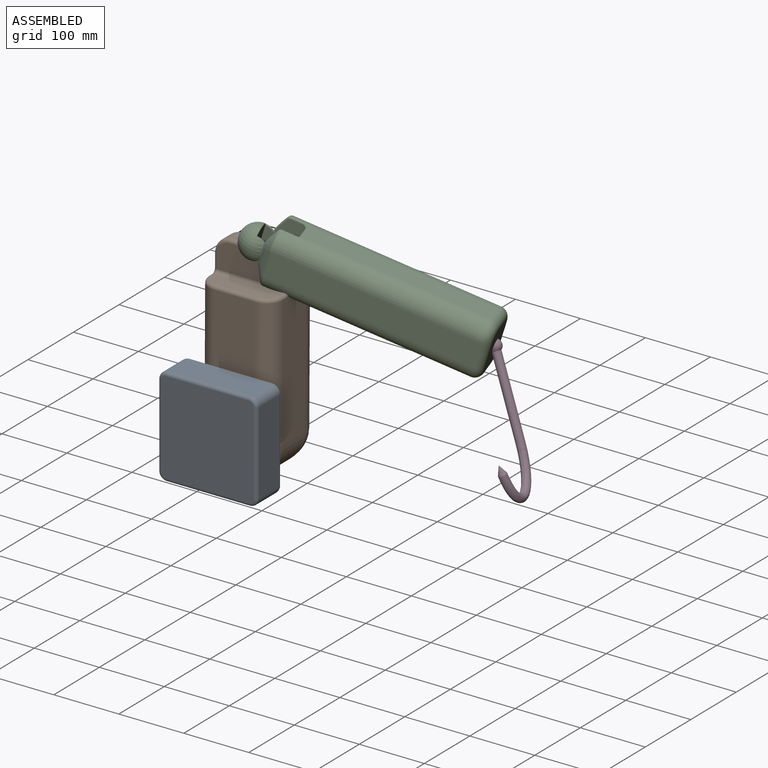
[diagram: assembled view]
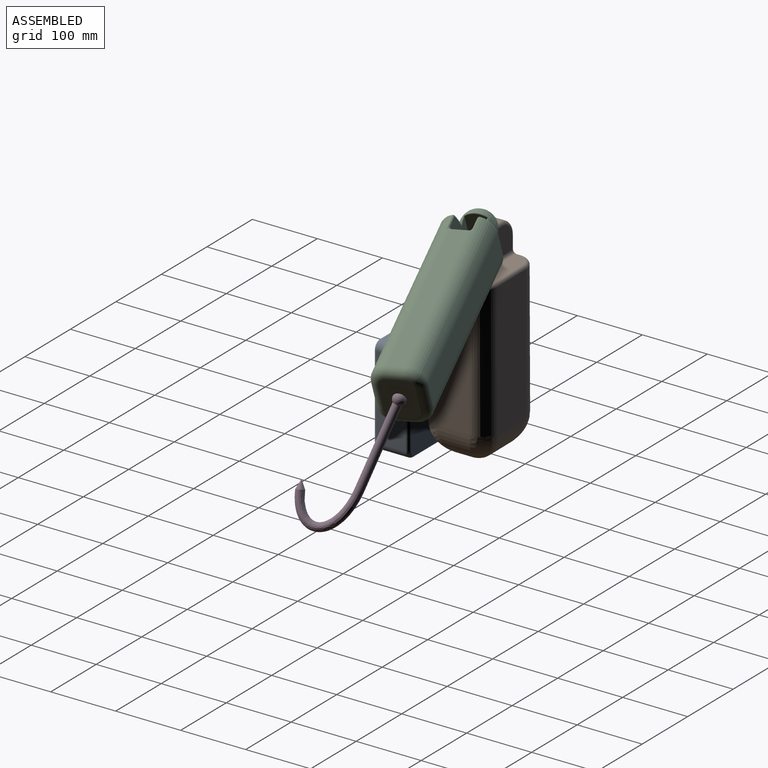
[diagram: assembled view, second angle]
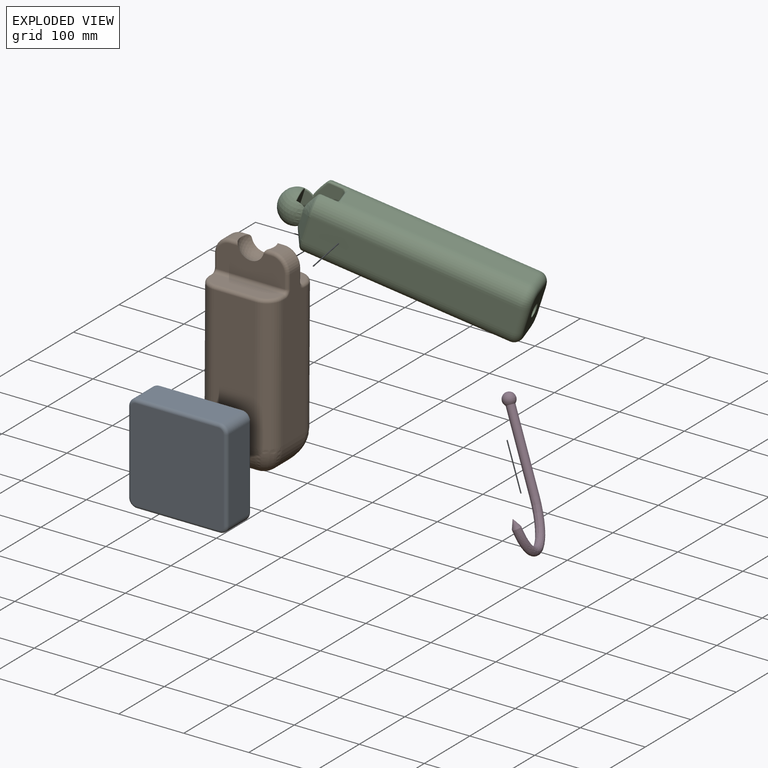
[diagram: exploded view]
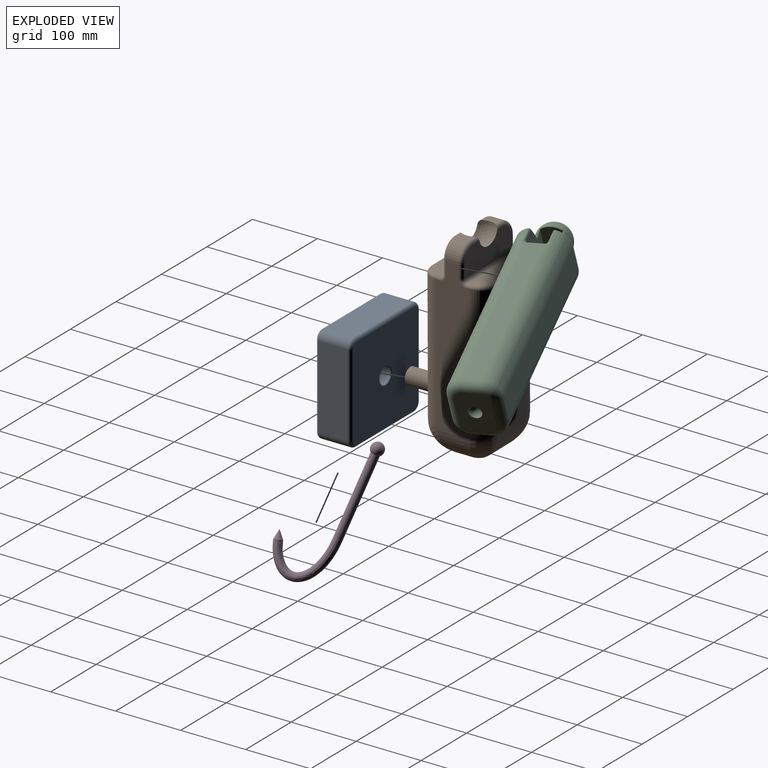
[diagram: exploded view, second angle]
ASSEMBLY  parts=4 mates=3
PART A: 29 faces, bbox 154.5x54.6x154.5 mm
  f0: plane 127x44.45mm, normal (0,0,-1), area 5645.2mm2, adj f1,f7,f12,f20
  f1: cylinder r=12.7mm len=44.45mm, axis (0,1,0), area 886.7mm2, adj f0,f2,f13,f21
  f2: plane 127x44.45mm, normal (1,0,0), area 5645.2mm2, adj f1,f3,f15,f23
  f3: cylinder r=12.7mm len=44.45mm, axis (0,1,0), area 886.7mm2, adj f2,f4,f17,f25
  f4: plane 127x44.45mm, normal (0,0,1), area 5645.2mm2, adj f3,f5,f19,f27
  f5: cylinder r=12.7mm len=44.45mm, axis (0,1,0), area 886.7mm2, adj f4,f6,f18,f26
  f6: plane 127x44.45mm, normal (-1,0,0), area 5645.2mm2, adj f5,f7,f16,f24
  f7: cylinder r=12.7mm len=44.45mm, axis (0,1,0), area 886.7mm2, adj f0,f6,f14,f22
  f8: plane 142.24x142.24mm, normal (0,-1,0), area 20182.4mm2, adj f20,f21,f22,f23,f24,f25,f26,f27
  f9: plane 142.24x142.24mm, normal (0,1,0), area 19569.3mm2, adj f12,f13,f14,f15,f16,f17,f18,f19
  f10: cylinder r=12.7mm len=49.53mm, axis (0,1,0), area 3952.3mm2, adj f11,f28
  f11: plane 25.4x25.4mm, normal (0,1,0), area 506.7mm2, adj f10
  f12: cylinder r=5.08mm len=127mm, axis (1,0,0), area 1013.4mm2, adj f0,f9,f13,f14
  f13: torus R=7.62mm, axis (0,-1,0), area 136mm2, adj f1,f9,f12,f15
  f14: torus R=7.62mm, axis (0,-1,0), area 136mm2, adj f7,f9,f12,f16
  f15: cylinder r=5.08mm len=127mm, axis (0,0,1), area 1013.4mm2, adj f2,f9,f13,f17
  f16: cylinder r=5.08mm len=127mm, axis (0,0,-1), area 1013.4mm2, adj f6,f9,f14,f18
  f17: torus R=7.62mm, axis (0,-1,0), area 136mm2, adj f3,f9,f15,f19
  f18: torus R=7.62mm, axis (0,-1,0), area 136mm2, adj f5,f9,f16,f19
  f19: cylinder r=5.08mm len=127mm, axis (-1,0,0), area 1013.4mm2, adj f4,f9,f17,f18
  f20: cylinder r=5.08mm len=127mm, axis (-1,0,0), area 1013.4mm2, adj f0,f8,f21,f22
  f21: torus R=7.62mm, axis (0,-1,0), area 136mm2, adj f1,f8,f20,f23
  f22: torus R=7.62mm, axis (0,-1,0), area 136mm2, adj f7,f8,f20,f24
  f23: cylinder r=5.08mm len=127mm, axis (0,0,-1), area 1013.4mm2, adj f2,f8,f21,f25
  f24: cylinder r=5.08mm len=127mm, axis (0,0,1), area 1013.4mm2, adj f6,f8,f22,f26
  f25: torus R=7.62mm, axis (0,-1,0), area 136mm2, adj f3,f8,f23,f27
  f26: torus R=7.62mm, axis (0,-1,0), area 136mm2, adj f5,f8,f24,f27
  f27: cylinder r=5.08mm len=127mm, axis (1,0,0), area 1013.4mm2, adj f4,f8,f25,f26
  f28: torus R=13.97mm, axis (0,-1,0), area 165mm2, adj f9,f10
PART B: 54 faces, bbox 118.5x312x158.3 mm
  f0: plane 20.32x8.47mm, normal (0,-1,0), area 143.1mm2, adj f11,f12,f40,f53
  f1: plane 203.2x63.5mm, normal (0,0,-1), area 12903.2mm2, adj f2,f8,f18,f47
  f2: cylinder r=25.4mm len=203.2mm, axis (0,1,0), area 8107.3mm2, adj f1,f3,f17,f48
  f3: plane 233.68x50.8mm, normal (1,0,0), area 10986.2mm2, adj f2,f4,f11,f13,f36,f37,f38,f49
  f4: cylinder r=25.4mm len=203.2mm, axis (0,1,0), area 8107.3mm2, adj f3,f5,f14,f35
  f5: plane 203.2x63.5mm, normal (0,0,1), area 12396.5mm2, adj f4,f6,f18,f26,f34
  f6: cylinder r=25.4mm len=203.2mm, axis (0,1,0), area 8107.3mm2, adj f5,f7,f15,f33
  f7: plane 233.68x50.8mm, normal (-1,0,0), area 10986.2mm2, adj f6,f8,f10,f16,f30,f31,f32,f43
  f8: cylinder r=25.4mm len=203.2mm, axis (0,1,0), area 8107.3mm2, adj f1,f7,f19,f46
  f9: plane 20.32x8.47mm, normal (0,-1,0), area 143.1mm2, adj f10,f12,f28,f41
  f10: cylinder r=25.4mm len=25.4mm, axis (0,0,1), area 810.7mm2, adj f7,f9,f29,f42
  f11: cylinder r=25.4mm len=25.4mm, axis (0,0,-1), area 810.7mm2, adj f0,f3,f39,f52
  f12: sphere r=25.4mm, area 2405.4mm2, adj f0,f9,f20,f22,f28,f40,f41,f53
  f13: cylinder r=50.8mm len=50.8mm, axis (0,0,1), area 2580.6mm2, adj f3,f14,f17
  f14: bspline ~60.66x50.8mm, area 2129.2mm2, adj f4,f13,f18
  f15: bspline ~60.66x50.8mm, area 2129.2mm2, adj f6,f16,f18
  f16: cylinder r=50.8mm len=50.8mm, axis (0,0,-1), area 2580.6mm2, adj f7,f15,f19
  f17: bspline ~60.66x50.8mm, area 2129.2mm2, adj f2,f13,f18
  f18: cylinder r=50.8mm len=101.6mm, axis (-1,0,0), area 7188.1mm2, adj f1,f5,f14,f15,f17,f19
  f19: bspline ~60.66x50.8mm, area 2129.2mm2, adj f8,f16,f18
  f20: plane 104.14x40.64mm, normal (0,0,-1), area 3610.7mm2, adj f12,f24,f41,f42,f43,f51,f52,f53
  f21: plane 104.14x25.4mm, normal (0,-1,0), area 2467.9mm2, adj f24,f45,f46,f47,f48,f49
  f22: plane 104.14x40.64mm, normal (0,0,1), area 3610.7mm2, adj f12,f25,f28,f29,f30,f38,f39,f40
  f23: plane 104.14x25.4mm, normal (0,-1,0), area 2467.9mm2, adj f25,f32,f33,f34,f35,f36
  f24: cylinder r=5.08mm len=104.14mm, axis (-1,0,0), area 831mm2, adj f20,f21,f44,f50
  f25: cylinder r=5.08mm len=104.14mm, axis (1,0,0), area 831mm2, adj f22,f23,f31,f37
  f26: cylinder r=12.7mm len=54.61mm, axis (0,0,-1), area 4357.7mm2, adj f5,f27
  f27: plane 25.4x25.4mm, normal (0,0,1), area 506.7mm2, adj f26
  f28: cylinder r=5.08mm len=12.08mm, axis (-1,0,0), area 82.9mm2, adj f9,f12,f22,f29
  f29: torus R=20.32mm, axis (0,0,1), area 295.2mm2, adj f10,f22,f28,f30
  f30: cylinder r=5.08mm len=20.32mm, axis (0,1,0), area 162.1mm2, adj f7,f22,f29,f31
  f31: torus R=10.16mm, axis (1,0,0), area 86.8mm2, adj f7,f25,f30,f32
  f32: cylinder r=5.08mm len=5.08mm, axis (0,0,1), area 40.5mm2, adj f7,f23,f31,f33
  f33: torus R=20.32mm, axis (0,-1,0), area 295.2mm2, adj f6,f23,f32,f34
  f34: cylinder r=5.08mm len=63.5mm, axis (1,0,0), area 506.7mm2, adj f5,f23,f33,f35
  f35: torus R=20.32mm, axis (0,-1,0), area 295.2mm2, adj f4,f23,f34,f36
  f36: cylinder r=5.08mm len=5.08mm, axis (0,0,-1), area 40.5mm2, adj f3,f23,f35,f37
  f37: torus R=10.16mm, axis (1,0,0), area 86.8mm2, adj f3,f25,f36,f38
  f38: cylinder r=5.08mm len=20.32mm, axis (0,-1,0), area 162.1mm2, adj f3,f22,f37,f39
  f39: torus R=20.32mm, axis (0,0,1), area 295.2mm2, adj f11,f22,f38,f40
  f40: cylinder r=5.08mm len=12.08mm, axis (-1,0,0), area 82.9mm2, adj f0,f12,f22,f39
  f41: cylinder r=5.08mm len=12.08mm, axis (1,0,0), area 82.9mm2, adj f9,f12,f20,f42
  f42: torus R=20.32mm, axis (0,0,1), area 295.2mm2, adj f10,f20,f41,f43
  f43: cylinder r=5.08mm len=20.32mm, axis (0,-1,0), area 162.1mm2, adj f7,f20,f42,f44
  f44: torus R=10.16mm, axis (1,0,0), area 86.8mm2, adj f7,f24,f43,f45
  f45: cylinder r=5.08mm len=5.08mm, axis (0,0,1), area 40.5mm2, adj f7,f21,f44,f46
  f46: torus R=20.32mm, axis (0,-1,0), area 295.2mm2, adj f8,f21,f45,f47
  f47: cylinder r=5.08mm len=63.5mm, axis (-1,0,0), area 506.7mm2, adj f1,f21,f46,f48
  f48: torus R=20.32mm, axis (0,-1,0), area 295.2mm2, adj f2,f21,f47,f49
  f49: cylinder r=5.08mm len=5.08mm, axis (0,0,-1), area 40.5mm2, adj f3,f21,f48,f50
  f50: torus R=10.16mm, axis (1,0,0), area 86.8mm2, adj f3,f24,f49,f51
  f51: cylinder r=5.08mm len=20.32mm, axis (0,1,0), area 162.1mm2, adj f3,f20,f50,f52
  f52: torus R=20.32mm, axis (0,0,1), area 295.2mm2, adj f11,f20,f51,f53
  f53: cylinder r=5.08mm len=12.08mm, axis (1,0,0), area 82.9mm2, adj f0,f12,f20,f52
PART C: 74 faces, bbox 94.6x355.8x80.6 mm
  f0: bspline ~88.64x36.88mm, area 1395.5mm2, adj f22,f23,f24,f25,f40,f49
  f1: plane 261.62x25.4mm, normal (1,0,0), area 6645.1mm2, adj f5,f6,f14,f45
  f2: plane 261.62x25.4mm, normal (-1,0,0), area 6645.1mm2, adj f8,f9,f15,f36
  f3: bspline ~82.52x26.38mm, area 1395.5mm2, adj f19,f20,f21,f25,f43,f52
  f4: plane 289.51x38.1mm, normal (0,0,-1), area 11030.3mm2, adj f5,f9,f18,f19
  f5: cylinder r=25.4mm len=289.48mm, axis (0,1,0), area 11385.9mm2, adj f1,f4,f16,f20,f46,f50
  f6: cylinder r=25.4mm len=289.49mm, axis (0,1,0), area 11385.9mm2, adj f1,f7,f12,f22,f44,f47
  f7: plane 289.51x38.1mm, normal (0,0,1), area 11030.3mm2, adj f6,f8,f11,f24
  f8: cylinder r=25.4mm len=289.48mm, axis (0,1,0), area 11385.9mm2, adj f2,f7,f13,f23,f35,f38
  f9: cylinder r=25.4mm len=289.49mm, axis (0,1,0), area 11385.9mm2, adj f2,f4,f17,f21,f37,f41
  f10: plane 63.5x50.8mm, normal (0,1,0), area 2802.3mm2, adj f11,f12,f13,f14,f15,f16,f17,f18
  f11: cylinder r=12.7mm len=38.1mm, axis (-1,0,0), area 760.1mm2, adj f7,f10,f12,f13
  f12: torus R=12.7mm, axis (0,-1,0), area 651.3mm2, adj f6,f10,f11,f14
  f13: torus R=12.7mm, axis (0,-1,0), area 651.3mm2, adj f8,f10,f11,f15
  f14: cylinder r=12.7mm len=25.4mm, axis (0,0,1), area 506.7mm2, adj f1,f10,f12,f16
  f15: cylinder r=12.7mm len=25.4mm, axis (0,0,-1), area 506.7mm2, adj f2,f10,f13,f17
  f16: torus R=12.7mm, axis (0,-1,0), area 651.3mm2, adj f5,f10,f14,f18
  f17: torus R=12.7mm, axis (0,-1,0), area 651.3mm2, adj f9,f10,f15,f18
  f18: cylinder r=12.7mm len=38.1mm, axis (1,0,0), area 760.1mm2, adj f4,f10,f16,f17
  f19: bspline ~44.12x4.35mm, area 183.5mm2, adj f3,f4,f20,f21
  f20: bspline ~25.8x22.13mm, area 172.2mm2, adj f3,f5,f19,f51
  f21: bspline ~25.62x21.14mm, area 172.2mm2, adj f3,f9,f19,f42
  f22: bspline ~25.62x21.14mm, area 172.2mm2, adj f0,f6,f24,f48
  f23: bspline ~25.8x22.13mm, area 172.2mm2, adj f0,f8,f24,f39
  f24: bspline ~44.12x4.35mm, area 183.4mm2, adj f0,f7,f22,f23
  f25: sphere r=25.4mm, area 4945.8mm2, adj f0,f3,f40,f43,f49,f52,f53,f54
  f26: plane 78.74x20.32mm, normal (0,-1,0), area 1600mm2, adj f36,f45,f62,f69
  f27: plane 82.68x45.91mm, normal (0,0,-1), area 2728.6mm2, adj f29,f38,f39,f40,f47,f48,f49,f55
  f28: plane 82.68x45.91mm, normal (0,0,1), area 2728.6mm2, adj f29,f41,f42,f43,f50,f51,f52,f53
  f29: plane 48.38x31.27mm, normal (0,1,0), area 1332.9mm2, adj f27,f28,f30,f31,f32,f33,f34,f53
  f30: revolved ~2.01x1mm, area 1.6mm2, adj f29,f31
  f31: revolved ~5.68x2.84mm, area 15.9mm2, adj f29,f30,f32
  f32: revolved ~6.35x3.18mm, area 24.2mm2, adj f29,f31,f33
  f33: revolved ~6.02x3.01mm, area 18.3mm2, adj f29,f32,f34
  f34: revolved ~2.84x1.42mm, area 3.3mm2, adj f29,f33
  f35: torus R=20.32mm, axis (0,-1,0), area 10.3mm2, adj f8,f36,f59
  f36: cylinder r=5.08mm len=25.4mm, axis (0,0,1), area 186.5mm2, adj f2,f26,f35,f37,f60,f61,f70,f71
  f37: torus R=20.32mm, axis (0,-1,0), area 10.3mm2, adj f9,f36,f72
  f38: cylinder r=2.54mm len=27.55mm, axis (0,1,0), area 99.7mm2, adj f8,f27,f39,f59,f60
  f39: bspline ~6.35x5.04mm, area 20.2mm2, adj f23,f27,f38,f40
  f40: bspline ~35.89x19.72mm, area 146.7mm2, adj f0,f25,f27,f39,f58
  f41: cylinder r=2.54mm len=27.55mm, axis (0,1,0), area 99.7mm2, adj f9,f28,f42,f71,f72
  f42: bspline ~6.35x5.04mm, area 20.2mm2, adj f21,f28,f41,f43
  f43: bspline ~36.82x19.94mm, area 146.3mm2, adj f3,f25,f28,f42,f56
  f44: torus R=20.32mm, axis (0,-1,0), area 10.3mm2, adj f6,f45,f65
  f45: cylinder r=5.08mm len=25.4mm, axis (0,0,-1), area 186.5mm2, adj f1,f26,f44,f46,f63,f64,f67,f68
  f46: torus R=20.32mm, axis (0,-1,0), area 10.3mm2, adj f5,f45,f66
  f47: cylinder r=2.54mm len=27.55mm, axis (0,1,0), area 99.7mm2, adj f6,f27,f48,f64,f65
  f48: bspline ~6.35x5.04mm, area 20.2mm2, adj f22,f27,f47,f49
  f49: bspline ~36.82x19.94mm, area 146.3mm2, adj f0,f25,f27,f48,f55
  f50: cylinder r=2.54mm len=27.55mm, axis (0,1,0), area 99.7mm2, adj f5,f28,f51,f66,f67
  f51: bspline ~6.35x5.04mm, area 20.2mm2, adj f20,f28,f50,f52
  f52: bspline ~38.49x20.87mm, area 146.7mm2, adj f3,f25,f28,f51,f53
  f53: torus R=17.6mm, axis (0,0,-1), area 42.9mm2, adj f25,f28,f29,f52,f54
  f54: torus R=24.1mm, axis (0,-1,0), area 74.8mm2, adj f25,f29,f53,f55
  f55: torus R=17.6mm, axis (0,0,1), area 42.8mm2, adj f25,f27,f29,f49,f54
  f56: torus R=17.6mm, axis (0,0,-1), area 42.8mm2, adj f25,f28,f29,f43,f57
  f57: torus R=24.1mm, axis (0,-1,0), area 74.8mm2, adj f25,f29,f56,f58
  f58: torus R=17.6mm, axis (0,0,1), area 42.9mm2, adj f25,f27,f29,f40,f57
  f59: bspline ~7.36x6.21mm, area 10mm2, adj f35,f38,f60
  f60: bspline ~7.2x6.19mm, area 20.7mm2, adj f36,f38,f59,f61
  f61: torus R=10.16mm, axis (0,0,1), area 10.8mm2, adj f27,f36,f60,f62
  f62: cylinder r=5.08mm len=78.74mm, axis (-1,0,0), area 628.3mm2, adj f26,f27,f61,f63
  f63: torus R=10.16mm, axis (0,0,1), area 10.8mm2, adj f27,f45,f62,f64
  f64: bspline ~7.09x6.19mm, area 20.7mm2, adj f45,f47,f63,f65
  f65: bspline ~7.36x6.21mm, area 10mm2, adj f44,f47,f64
  f66: bspline ~7.36x6.21mm, area 10mm2, adj f46,f50,f67
  f67: bspline ~7.09x6.19mm, area 20.7mm2, adj f45,f50,f66,f68
  f68: torus R=10.16mm, axis (0,0,-1), area 10.8mm2, adj f28,f45,f67,f69
  f69: cylinder r=5.08mm len=78.74mm, axis (1,0,0), area 628.3mm2, adj f26,f28,f68,f70
  f70: torus R=10.16mm, axis (0,0,-1), area 10.8mm2, adj f28,f36,f69,f71
  f71: bspline ~7.09x6.19mm, area 20.7mm2, adj f36,f41,f70,f72
  f72: bspline ~7.36x6.21mm, area 10mm2, adj f37,f41,f71
  f73: sphere r=9.53mm, area 570mm2, adj f10
PART D: 6 faces, bbox 87.1x25.4x209.6 mm
  f0: cylinder r=6.35mm len=119.9mm, axis (0,0,1), area 4783.8mm2, adj f1,f5
  f1: bspline ~83.91x73.09mm, area 5387.3mm2, adj f0,f3
  f2: plane 0.23x0.22mm, normal (-0.3,0,-0.95), area 0mm2, adj f4
  f3: cone r=0.32mm half-angle=25.4deg, axis (0.3,0,0.95), area 294.1mm2, adj f1,f4
  f4: torus R=0.12mm, axis (-0.3,0,-0.95), area 0.6mm2, adj f2,f3
  f5: sphere r=9.53mm, area 994.9mm2, adj f0
PLACE A t=(-151.5,308.2,-5.64)mm fixed
PLACE B rot(axis=(0,-0.71,0.71),179.8deg) t=(-151.88,362.81,-81.84)mm
PLACE C rot(axis=(-0.64,-0.61,-0.46),99.6deg) t=(175.45,416.22,169.21)mm
PLACE D rot(axis=(0.63,0.77,0.07),153deg) t=(152.77,446.88,131.88)mm
MATE ball C.f53 <-> B.f12  axis (-0.26,0.96,0.09) through (-150.35,362.81,228.04)mm
MATE ball D.f0 <-> C.f54  axis (0.44,-0.18,-0.88) through (151.87,452.94,130.19)mm
MATE revolute B.f26 <-> A.f10  axis (0,-1,0) through (-151.5,257.4,-5.64)mm
